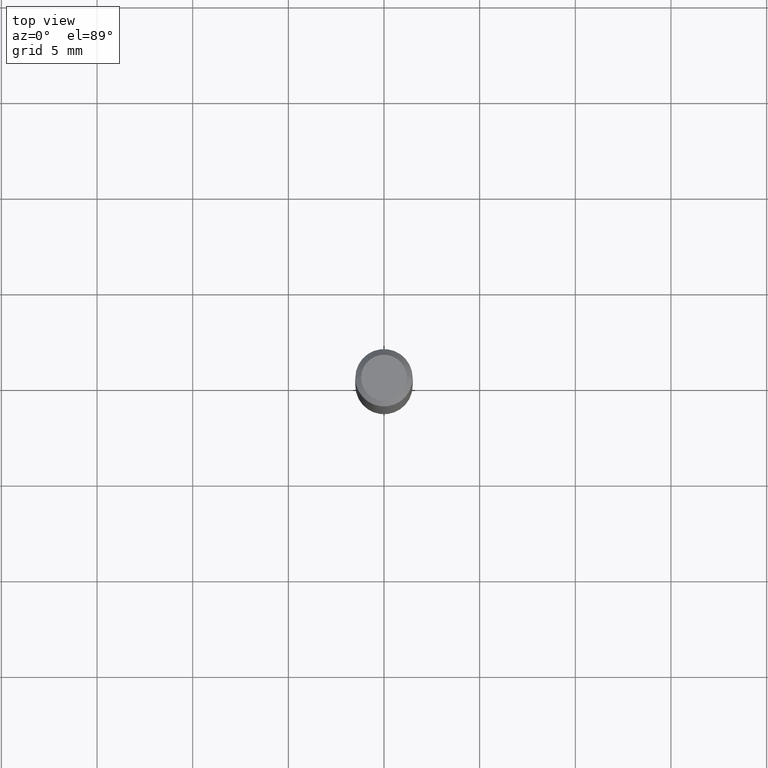
[diagram: clean part render]
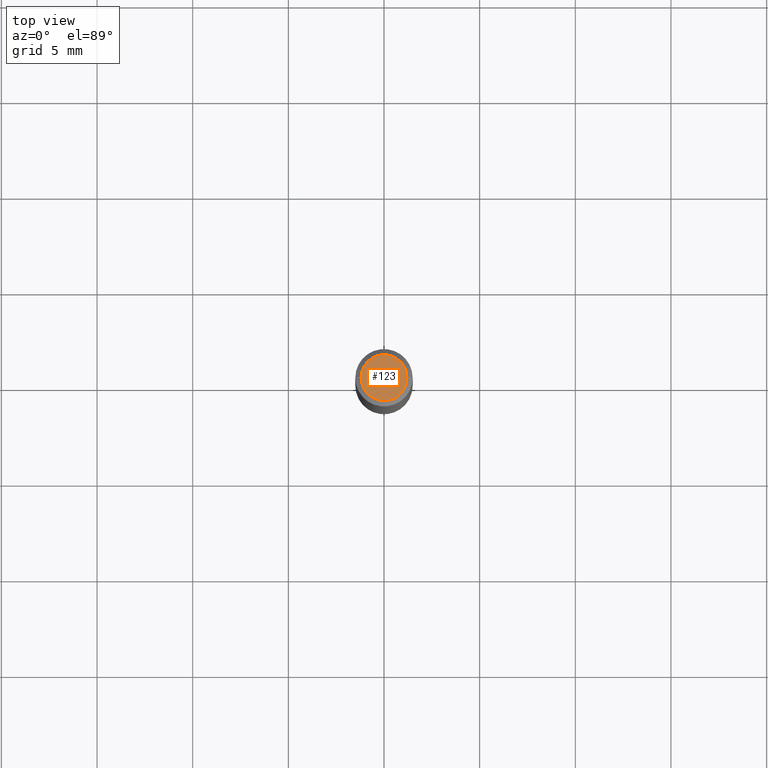
[diagram: same view with one face highlighted and labeled with its STEP entity id]
A machine part, top view. The second image highlights one B-rep face of the part: STEP entity #123.
In plain terms, the highlighted planar face has unit normal (0, -0, -1).
Its self-contained STEP definition (entity closure, byte-faithful):
#8 = DIRECTION ( 'NONE',  ( -1.000000000000000000, 6.982962677686265922E-15, -4.876176775795935793E-29 ) ) ;
#24 = CARTESIAN_POINT ( 'NONE',  ( 8.265746106709734507E-48, -1.180129479067563789E-33, -3.380025165646692144E-19 ) ) ;
#37 = CIRCLE ( 'NONE', #176, 0.04724000000000000421 ) ;
#56 = CARTESIAN_POINT ( 'NONE',  ( 0.04724000000000000421, -3.852183633974369345E-16, -3.380025165621689721E-19 ) ) ;
#67 = VERTEX_POINT ( 'NONE', #56 ) ;
#70 = ORIENTED_EDGE ( 'NONE', *, *, #389, .T. ) ;
#81 = CIRCLE ( 'NONE', #352, 0.04724000000000000421 ) ;
#85 = PLANE ( 'NONE',  #124 ) ;
#123 = ADVANCED_FACE ( 'NONE', ( #231 ), #85, .F. ) ;
#124 = AXIS2_PLACEMENT_3D ( 'NONE', #347, #383, #8 ) ;
#141 = CARTESIAN_POINT ( 'NONE',  ( 8.265746106709734507E-48, -1.180129479067563789E-33, -3.380025165646692144E-19 ) ) ;
#171 = DIRECTION ( 'NONE',  ( -2.445468806185136597E-29, 3.491481338843145583E-15, 1.000000000000000000 ) ) ;
#176 = AXIS2_PLACEMENT_3D ( 'NONE', #24, #171, #319 ) ;
#188 = VERTEX_POINT ( 'NONE', #437 ) ;
#231 = FACE_OUTER_BOUND ( 'NONE', #329, .T. ) ;
#296 = EDGE_CURVE ( 'NONE', #188, #67, #37, .T. ) ;
#319 = DIRECTION ( 'NONE',  ( 1.000000000000000000, -6.982962677686266711E-15, 4.876185090822587894E-29 ) ) ;
#329 = EDGE_LOOP ( 'NONE', ( #331, #70 ) ) ;
#331 = ORIENTED_EDGE ( 'NONE', *, *, #296, .T. ) ;
#347 = CARTESIAN_POINT ( 'NONE',  ( 4.132873053354867254E-48, -5.900647395337818946E-34, -1.690012582823346072E-19 ) ) ;
#352 = AXIS2_PLACEMENT_3D ( 'NONE', #141, #365, #369 ) ;
#365 = DIRECTION ( 'NONE',  ( -2.445468806185136597E-29, 3.491481338843145583E-15, 1.000000000000000000 ) ) ;
#369 = DIRECTION ( 'NONE',  ( 1.000000000000000000, -6.982962677686266711E-15, 4.876185090822587894E-29 ) ) ;
#383 = DIRECTION ( 'NONE',  ( 2.438088387897960049E-29, -3.491481338843145188E-15, -1.000000000000000000 ) ) ;
#389 = EDGE_CURVE ( 'NONE', #67, #188, #81, .T. ) ;
#437 = CARTESIAN_POINT ( 'NONE',  ( -0.04724000000000000421, 3.504923541997677355E-16, -3.380025165670481712E-19 ) ) ;